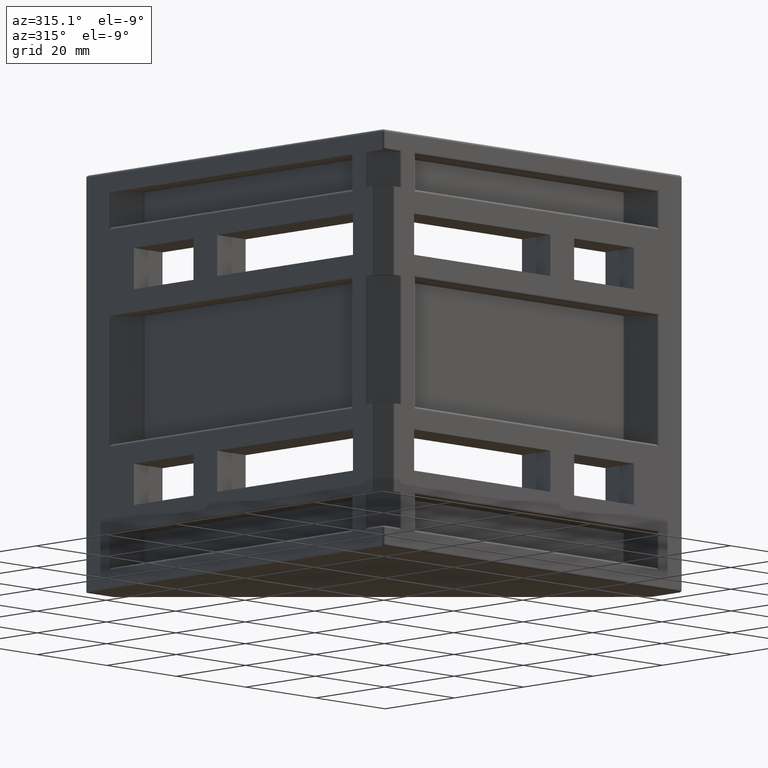
[diagram: clean part render]
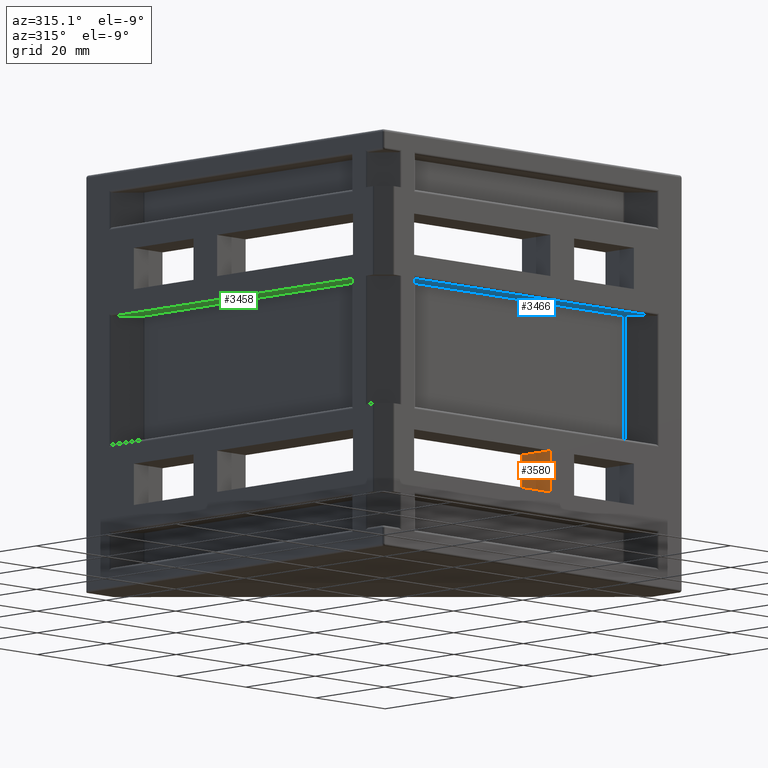
[diagram: same view with three faces highlighted in distinct colors, each labeled with its STEP entity id]
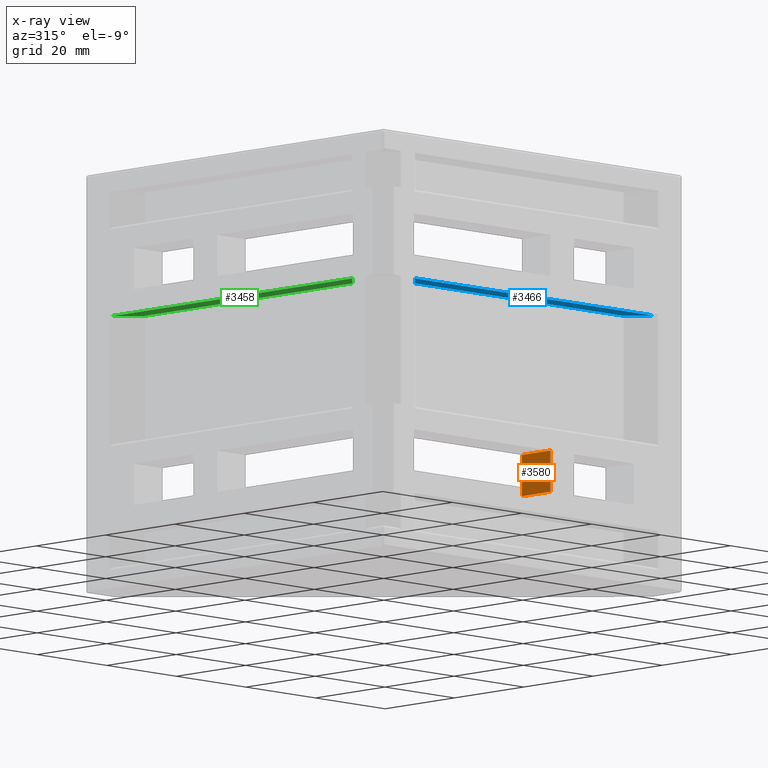
[diagram: x-ray of the same camera — body ghosted, the three highlighted faces saturated]
A machine part, auxiliary view with three faces highlighted in distinct colors.
The next image is the same camera in x-ray (body ghosted, the three faces saturated) — at least one of them is partly hidden behind the body in this view.
Their STEP definitions:

[orange] entity #3580 — the highlighted planar face has unit normal (1, 0, 0).
#444=FACE_OUTER_BOUND('',#658,.T.);
#658=EDGE_LOOP('',(#3164,#3165,#3166,#3167));
#866=LINE('',#5510,#1231);
#1006=LINE('',#5982,#1371);
#1029=LINE('',#6024,#1394);
#1030=LINE('',#6025,#1395);
#1231=VECTOR('',#4391,10.);
#1371=VECTOR('',#4917,10.);
#1394=VECTOR('',#4960,10.);
#1395=VECTOR('',#4961,10.);
#1594=VERTEX_POINT('',#5508);
#1595=VERTEX_POINT('',#5509);
#1734=VERTEX_POINT('',#5981);
#1743=VERTEX_POINT('',#6023);
#1984=EDGE_CURVE('',#1594,#1595,#866,.T.);
#2219=EDGE_CURVE('',#1594,#1734,#1006,.T.);
#2242=EDGE_CURVE('',#1743,#1734,#1029,.T.);
#2243=EDGE_CURVE('',#1743,#1595,#1030,.T.);
#3164=ORIENTED_EDGE('',*,*,#2219,.T.);
#3165=ORIENTED_EDGE('',*,*,#2242,.F.);
#3166=ORIENTED_EDGE('',*,*,#2243,.T.);
#3167=ORIENTED_EDGE('',*,*,#1984,.F.);
#3386=PLANE('',#3947);
#3580=ADVANCED_FACE('',(#444),#3386,.F.);
#3947=AXIS2_PLACEMENT_3D('',#6022,#4958,#4959);
#4391=DIRECTION('',(0.,0.,-1.));
#4917=DIRECTION('',(0.,1.,0.));
#4958=DIRECTION('center_axis',(1.,0.,0.));
#4959=DIRECTION('ref_axis',(0.,1.,0.));
#4960=DIRECTION('',(0.,0.,1.));
#4961=DIRECTION('',(0.,-1.,0.));
#5508=CARTESIAN_POINT('',(48.,1.11022302462516E-15,-18.));
#5509=CARTESIAN_POINT('',(48.,2.91948449548205E-15,-26.5));
#5510=CARTESIAN_POINT('',(48.,2.47863745032593E-15,0.));
#5981=CARTESIAN_POINT('',(48.,8.2,-18.));
#5982=CARTESIAN_POINT('',(48.,1.92818536150051,-18.));
#6022=CARTESIAN_POINT('Origin',(48.,3.33066907387547E-15,0.));
#6023=CARTESIAN_POINT('',(48.,8.2,-26.5));
#6024=CARTESIAN_POINT('',(48.,8.2,-18.5));
#6025=CARTESIAN_POINT('',(48.,8.2,-26.5));

[blue] entity #3466 — the highlighted planar face has unit normal (0, 0, 1).
#137=CIRCLE('',#3693,0.5);
#148=CIRCLE('',#3731,0.5);
#330=FACE_OUTER_BOUND('',#533,.T.);
#533=EDGE_LOOP('',(#2562,#2563,#2564,#2565,#2566,#2567));
#768=LINE('',#5264,#1133);
#835=LINE('',#5436,#1200);
#836=LINE('',#5438,#1201);
#837=LINE('',#5439,#1202);
#1133=VECTOR('',#4199,10.);
#1200=VECTOR('',#4336,10.);
#1201=VECTOR('',#4337,10.);
#1202=VECTOR('',#4338,10.);
#1486=VERTEX_POINT('',#5244);
#1487=VERTEX_POINT('',#5245);
#1494=VERTEX_POINT('',#5263);
#1563=VERTEX_POINT('',#5430);
#1564=VERTEX_POINT('',#5432);
#1565=VERTEX_POINT('',#5437);
#1852=EDGE_CURVE('',#1486,#1487,#137,.T.);
#1861=EDGE_CURVE('',#1486,#1494,#768,.T.);
#1945=EDGE_CURVE('',#1564,#1563,#148,.T.);
#1947=EDGE_CURVE('',#1564,#1487,#835,.T.);
#1948=EDGE_CURVE('',#1565,#1563,#836,.T.);
#1949=EDGE_CURVE('',#1494,#1565,#837,.T.);
#2562=ORIENTED_EDGE('',*,*,#1852,.T.);
#2563=ORIENTED_EDGE('',*,*,#1947,.F.);
#2564=ORIENTED_EDGE('',*,*,#1945,.T.);
#2565=ORIENTED_EDGE('',*,*,#1948,.F.);
#2566=ORIENTED_EDGE('',*,*,#1949,.F.);
#2567=ORIENTED_EDGE('',*,*,#1861,.F.);
#3334=PLANE('',#3732);
#3466=ADVANCED_FACE('',(#330),#3334,.F.);
#3693=AXIS2_PLACEMENT_3D('',#5246,#4183,#4184);
#3731=AXIS2_PLACEMENT_3D('',#5433,#4331,#4332);
#3732=AXIS2_PLACEMENT_3D('',#5435,#4334,#4335);
#4183=DIRECTION('center_axis',(0.,0.,-1.));
#4184=DIRECTION('ref_axis',(-0.382683432365087,0.923879532511288,0.));
#4199=DIRECTION('',(-0.707106781186549,-0.707106781186546,0.));
#4331=DIRECTION('center_axis',(0.,0.,-1.));
#4332=DIRECTION('ref_axis',(0.382683432365089,0.923879532511287,0.));
#4334=DIRECTION('center_axis',(0.,0.,1.));
#4335=DIRECTION('ref_axis',(1.,0.,0.));
#4336=DIRECTION('',(-1.,0.,0.));
#4337=DIRECTION('',(-0.707106781186548,0.707106781186548,0.));
#4338=DIRECTION('',(1.,5.16382802151236E-17,0.));
#5244=CARTESIAN_POINT('',(13.8535533905933,4.85355339059327,13.25));
#5245=CARTESIAN_POINT('',(14.2071067811866,5.,13.25));
#5246=CARTESIAN_POINT('Origin',(14.2071067811866,4.5,13.25));
#5263=CARTESIAN_POINT('',(9.49999999999999,0.5,13.25));
#5264=CARTESIAN_POINT('',(8.99999999999999,0.,13.25));
#5430=CARTESIAN_POINT('',(74.1464466094067,4.85355339059327,13.25));
#5432=CARTESIAN_POINT('',(73.7928932188135,5.,13.25));
#5433=CARTESIAN_POINT('Origin',(73.7928932188135,4.5,13.25));
#5435=CARTESIAN_POINT('Origin',(44.,2.32656008326906,13.25));
#5436=CARTESIAN_POINT('',(14.,5.,13.25));
#5437=CARTESIAN_POINT('',(78.5,0.500000000000004,13.25));
#5438=CARTESIAN_POINT('',(74.,5.,13.25));
#5439=CARTESIAN_POINT('',(22.,0.500000000000001,13.25));

[green] entity #3458 — the highlighted planar face has unit normal (0, 0, 1).
#145=CIRCLE('',#3709,0.5);
#147=CIRCLE('',#3716,0.5);
#322=FACE_OUTER_BOUND('',#518,.T.);
#518=EDGE_LOOP('',(#2482,#2483,#2484,#2485,#2486,#2487));
#782=LINE('',#5312,#1147);
#786=LINE('',#5325,#1151);
#787=LINE('',#5327,#1152);
#788=LINE('',#5328,#1153);
#1147=VECTOR('',#4243,10.);
#1151=VECTOR('',#4257,10.);
#1152=VECTOR('',#4258,10.);
#1153=VECTOR('',#4259,10.);
#1507=VERTEX_POINT('',#5295);
#1508=VERTEX_POINT('',#5297);
#1513=VERTEX_POINT('',#5311);
#1516=VERTEX_POINT('',#5319);
#1517=VERTEX_POINT('',#5320);
#1518=VERTEX_POINT('',#5326);
#1877=EDGE_CURVE('',#1508,#1507,#145,.T.);
#1884=EDGE_CURVE('',#1508,#1513,#782,.T.);
#1888=EDGE_CURVE('',#1516,#1517,#147,.T.);
#1891=EDGE_CURVE('',#1516,#1507,#786,.T.);
#1892=EDGE_CURVE('',#1518,#1517,#787,.T.);
#1893=EDGE_CURVE('',#1513,#1518,#788,.T.);
#2482=ORIENTED_EDGE('',*,*,#1877,.T.);
#2483=ORIENTED_EDGE('',*,*,#1891,.F.);
#2484=ORIENTED_EDGE('',*,*,#1888,.T.);
#2485=ORIENTED_EDGE('',*,*,#1892,.F.);
#2486=ORIENTED_EDGE('',*,*,#1893,.F.);
#2487=ORIENTED_EDGE('',*,*,#1884,.F.);
#3331=PLANE('',#3717);
#3458=ADVANCED_FACE('',(#322),#3331,.F.);
#3709=AXIS2_PLACEMENT_3D('',#5298,#4230,#4231);
#3716=AXIS2_PLACEMENT_3D('',#5321,#4251,#4252);
#3717=AXIS2_PLACEMENT_3D('',#5324,#4255,#4256);
#4230=DIRECTION('center_axis',(0.,0.,-1.));
#4231=DIRECTION('ref_axis',(0.923879532511287,0.382683432365089,0.));
#4243=DIRECTION('',(-0.707106781186547,0.707106781186548,0.));
#4251=DIRECTION('center_axis',(0.,0.,-1.));
#4252=DIRECTION('ref_axis',(0.923879532511287,-0.38268343236509,0.));
#4255=DIRECTION('center_axis',(0.,0.,1.));
#4256=DIRECTION('ref_axis',(1.,0.,0.));
#4257=DIRECTION('',(-2.59052039079203E-16,1.,0.));
#4258=DIRECTION('',(0.707106781186548,0.707106781186547,0.));
#4259=DIRECTION('',(0.,-1.,0.));
#5295=CARTESIAN_POINT('',(5.,73.7928932188134,13.25));
#5297=CARTESIAN_POINT('',(4.85355339059328,74.1464466094067,13.25));
#5298=CARTESIAN_POINT('Origin',(4.5,73.7928932188134,13.25));
#5311=CARTESIAN_POINT('',(0.5,78.5,13.25));
#5312=CARTESIAN_POINT('',(0.,79.,13.25));
#5319=CARTESIAN_POINT('',(5.00000000000002,14.2071067811866,13.25));
#5320=CARTESIAN_POINT('',(4.85355339059329,13.8535533905933,13.25));
#5321=CARTESIAN_POINT('Origin',(4.50000000000002,14.2071067811866,13.25));
#5324=CARTESIAN_POINT('Origin',(2.32656008326906,44.,13.25));
#5325=CARTESIAN_POINT('',(5.,74.,13.25));
#5326=CARTESIAN_POINT('',(0.5,9.5,13.25));
#5327=CARTESIAN_POINT('',(5.00000000000002,14.,13.25));
#5328=CARTESIAN_POINT('',(0.5,65.,13.25));